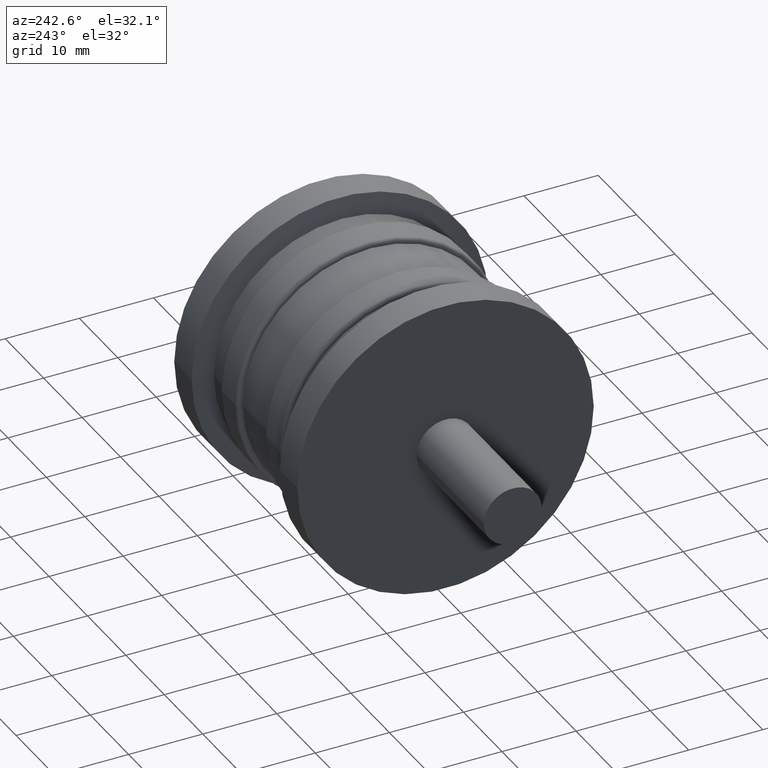
[diagram: clean part render]
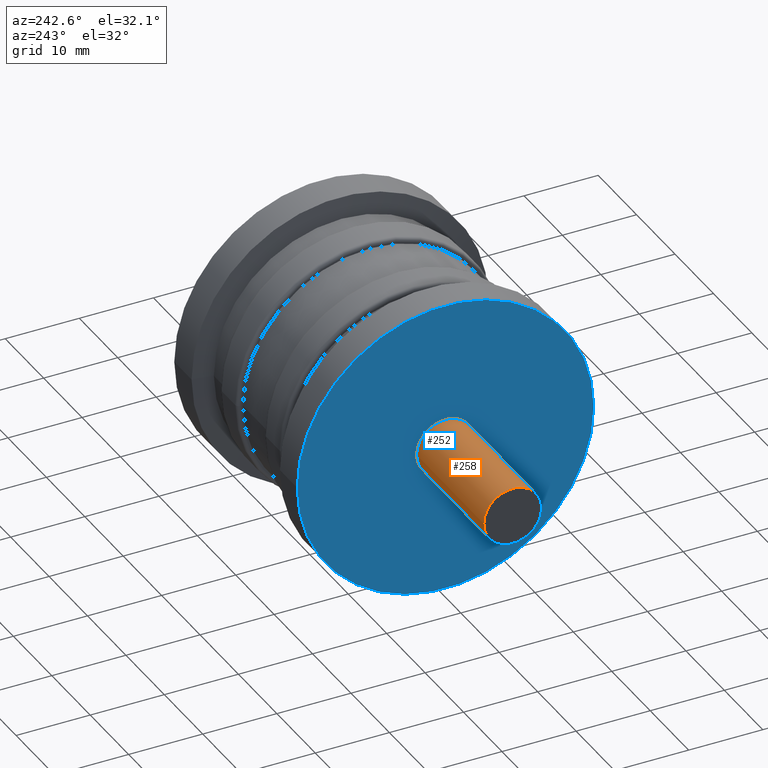
[diagram: same view with the hole feature highlighted: cylindrical wall and planar end face, labeled with their STEP entity ids]
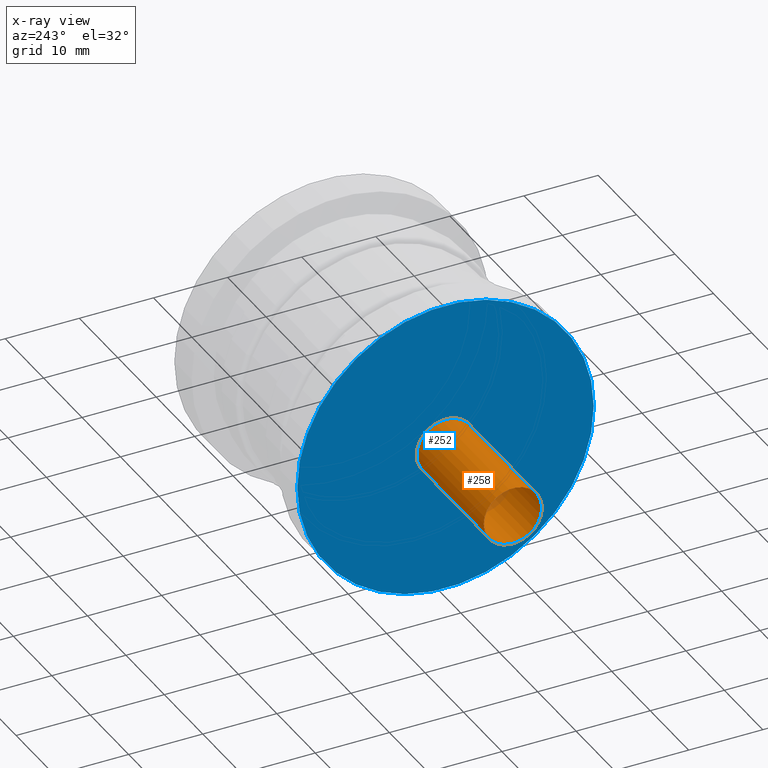
[diagram: x-ray of the same camera — body ghosted, the hole faces saturated]
A machine part, auxiliary view. The highlighted faces form one hole feature of diameter 7.8 mm: the cylindrical wall (entity #258, orange) and its adjacent planar end face (entity #252, blue) — they share a circular edge in the B-rep.
The next image is the same camera in x-ray (body ghosted, the hole faces saturated) — the bore reads through the body.
Wall:
#33=CYLINDRICAL_SURFACE('',#305,3.9);
#54=FACE_BOUND('',#121,.T.);
#77=FACE_OUTER_BOUND('',#120,.T.);
#120=EDGE_LOOP('',(#230));
#121=EDGE_LOOP('',(#231));
#140=CIRCLE('',#296,3.9);
#143=CIRCLE('',#304,3.9);
#162=VERTEX_POINT('',#452);
#165=VERTEX_POINT('',#463);
#184=EDGE_CURVE('',#162,#162,#140,.T.);
#187=EDGE_CURVE('',#165,#165,#143,.T.);
#230=ORIENTED_EDGE('',*,*,#187,.T.);
#231=ORIENTED_EDGE('',*,*,#184,.F.);
#258=ADVANCED_FACE('',(#77,#54),#33,.T.);
#296=AXIS2_PLACEMENT_3D('',#453,#378,#379);
#304=AXIS2_PLACEMENT_3D('',#464,#394,#395);
#305=AXIS2_PLACEMENT_3D('',#465,#396,#397);
#378=DIRECTION('center_axis',(1.,0.,0.));
#379=DIRECTION('ref_axis',(0.,0.,-1.));
#394=DIRECTION('center_axis',(1.,0.,0.));
#395=DIRECTION('ref_axis',(0.,0.,-1.));
#396=DIRECTION('center_axis',(1.,0.,0.));
#397=DIRECTION('ref_axis',(0.,1.,0.));
#452=CARTESIAN_POINT('',(-16.,3.9,0.));
#453=CARTESIAN_POINT('Origin',(-16.,0.,0.));
#463=CARTESIAN_POINT('',(-33.5,3.9,0.));
#464=CARTESIAN_POINT('Origin',(-33.5,0.,0.));
#465=CARTESIAN_POINT('Origin',(-24.75,0.,0.));
End face:
#23=PLANE('',#294);
#49=FACE_BOUND('',#110,.T.);
#71=FACE_OUTER_BOUND('',#109,.T.);
#109=EDGE_LOOP('',(#219));
#110=EDGE_LOOP('',(#220));
#139=CIRCLE('',#295,20.);
#140=CIRCLE('',#296,3.9);
#161=VERTEX_POINT('',#450);
#162=VERTEX_POINT('',#452);
#183=EDGE_CURVE('',#161,#161,#139,.T.);
#184=EDGE_CURVE('',#162,#162,#140,.T.);
#219=ORIENTED_EDGE('',*,*,#183,.F.);
#220=ORIENTED_EDGE('',*,*,#184,.T.);
#252=ADVANCED_FACE('',(#71,#49),#23,.T.);
#294=AXIS2_PLACEMENT_3D('',#449,#374,#375);
#295=AXIS2_PLACEMENT_3D('',#451,#376,#377);
#296=AXIS2_PLACEMENT_3D('',#453,#378,#379);
#374=DIRECTION('center_axis',(-1.,0.,0.));
#375=DIRECTION('ref_axis',(0.,0.,1.));
#376=DIRECTION('center_axis',(1.,0.,0.));
#377=DIRECTION('ref_axis',(0.,0.,-1.));
#378=DIRECTION('center_axis',(1.,0.,0.));
#379=DIRECTION('ref_axis',(0.,0.,-1.));
#449=CARTESIAN_POINT('Origin',(-16.,20.,0.));
#450=CARTESIAN_POINT('',(-16.,20.,0.));
#451=CARTESIAN_POINT('Origin',(-16.,0.,0.));
#452=CARTESIAN_POINT('',(-16.,3.9,0.));
#453=CARTESIAN_POINT('Origin',(-16.,0.,0.));